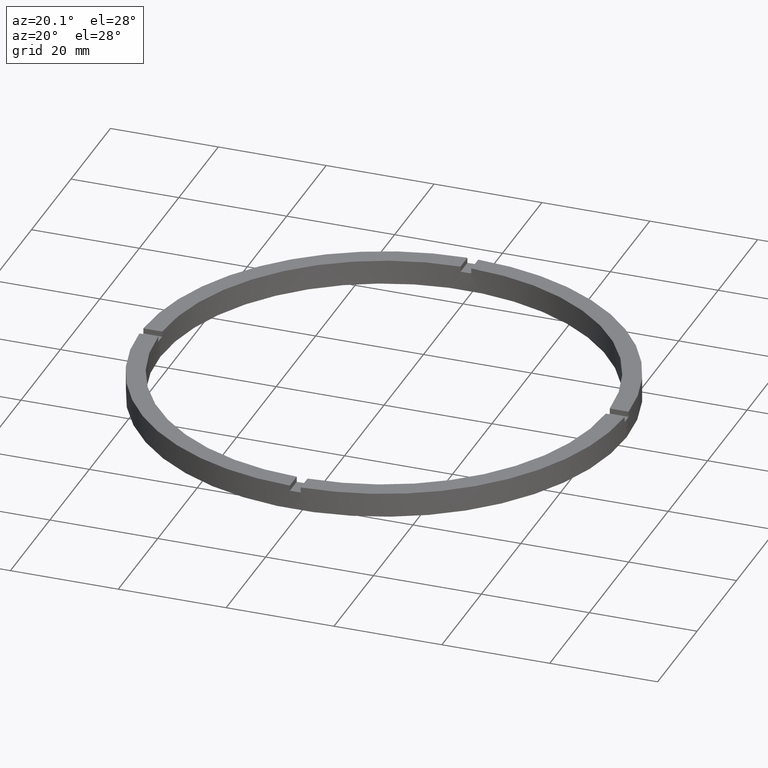
[diagram: clean part render]
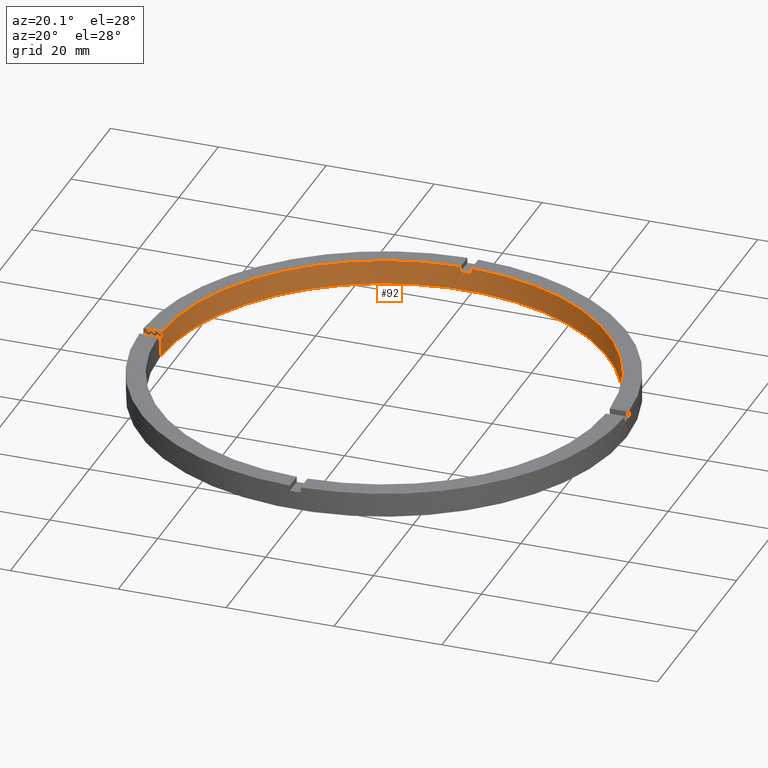
[diagram: same view with one face highlighted and labeled with its STEP entity id]
A machine part, auxiliary view. The second image highlights one B-rep face of the part: STEP entity #92.
In plain terms, the highlighted cylindrical surface (partial cylindrical patch) has radius 41.5 mm, axis along (-0, -0, -1).
Its self-contained STEP definition (entity closure, byte-faithful):
#7 = DIRECTION ( 'NONE',  ( 0.000000000000000000, 0.000000000000000000, 1.000000000000000000 ) ) ;
#8 = VECTOR ( 'NONE', #59, 1000.000000000000000 ) ;
#10 = VECTOR ( 'NONE', #347, 1000.000000000000000 ) ;
#31 = AXIS2_PLACEMENT_3D ( 'NONE', #399, #744, #630 ) ;
#44 = EDGE_CURVE ( 'NONE', #484, #700, #634, .T. ) ;
#49 = CARTESIAN_POINT ( 'NONE',  ( 41.50000000000000000, 5.082284216461515748E-15, 0.000000000000000000 ) ) ;
#54 = CARTESIAN_POINT ( 'NONE',  ( 0.000000000000000000, 0.000000000000000000, 3.499999999999999556 ) ) ;
#59 = DIRECTION ( 'NONE',  ( -0.000000000000000000, -0.000000000000000000, -1.000000000000000000 ) ) ;
#61 = DIRECTION ( 'NONE',  ( -0.000000000000000000, -0.000000000000000000, -1.000000000000000000 ) ) ;
#67 = EDGE_CURVE ( 'NONE', #481, #445, #633, .T. ) ;
#68 = CARTESIAN_POINT ( 'NONE',  ( 0.000000000000000000, 0.000000000000000000, 3.499999999999999556 ) ) ;
#92 = ADVANCED_FACE ( 'NONE', ( #151 ), #409, .F. ) ;
#93 = DIRECTION ( 'NONE',  ( 0.000000000000000000, 0.000000000000000000, 1.000000000000000000 ) ) ;
#94 = CARTESIAN_POINT ( 'NONE',  ( -1.000000000000026201, 41.48795005781799716, 3.499999999999999556 ) ) ;
#96 = DIRECTION ( 'NONE',  ( 1.000000000000000000, 0.000000000000000000, 0.000000000000000000 ) ) ;
#118 = VECTOR ( 'NONE', #61, 1000.000000000000000 ) ;
#143 = VECTOR ( 'NONE', #604, 1000.000000000000000 ) ;
#144 = CARTESIAN_POINT ( 'NONE',  ( -1.000000000000026201, 41.48795005781799716, 4.500000000000000000 ) ) ;
#146 = CARTESIAN_POINT ( 'NONE',  ( 0.000000000000000000, 0.000000000000000000, 4.500000000000000000 ) ) ;
#151 = FACE_OUTER_BOUND ( 'NONE', #193, .T. ) ;
#156 = DIRECTION ( 'NONE',  ( 1.000000000000000000, 0.000000000000000000, 0.000000000000000000 ) ) ;
#157 = ORIENTED_EDGE ( 'NONE', *, *, #513, .F. ) ;
#164 = CARTESIAN_POINT ( 'NONE',  ( -41.48795005781799716, 0.9999999999999709122, 4.500000000000000000 ) ) ;
#193 = EDGE_LOOP ( 'NONE', ( #446, #403, #660, #459, #491, #233, #157, #395, #476, #472, #719, #650 ) ) ;
#195 = CARTESIAN_POINT ( 'NONE',  ( 41.50000000000000000, 5.082284216461515748E-15, 4.500000000000000000 ) ) ;
#232 = DIRECTION ( 'NONE',  ( -1.000000000000000000, 0.000000000000000000, 0.000000000000000000 ) ) ;
#233 = ORIENTED_EDGE ( 'NONE', *, *, #370, .T. ) ;
#234 = CARTESIAN_POINT ( 'NONE',  ( 41.48795005781800427, 0.9999999999998436806, 4.500000000000000000 ) ) ;
#238 = VERTEX_POINT ( 'NONE', #144 ) ;
#249 = AXIS2_PLACEMENT_3D ( 'NONE', #54, #93, #156 ) ;
#256 = CARTESIAN_POINT ( 'NONE',  ( 0.000000000000000000, 0.000000000000000000, 0.000000000000000000 ) ) ;
#257 = CARTESIAN_POINT ( 'NONE',  ( 41.50000000000000000, 5.082284216461515748E-15, 3.499999999999999556 ) ) ;
#261 = CIRCLE ( 'NONE', #775, 41.50000000000000000 ) ;
#265 = DIRECTION ( 'NONE',  ( 0.000000000000000000, -0.000000000000000000, 1.000000000000000000 ) ) ;
#270 = CIRCLE ( 'NONE', #31, 41.50000000000000000 ) ;
#276 = CARTESIAN_POINT ( 'NONE',  ( -41.48795005781799716, 0.9999999999999709122, 4.500000000000000000 ) ) ;
#279 = LINE ( 'NONE', #610, #779 ) ;
#292 = EDGE_CURVE ( 'NONE', #484, #471, #689, .T. ) ;
#347 = DIRECTION ( 'NONE',  ( -0.000000000000000000, -0.000000000000000000, -1.000000000000000000 ) ) ;
#348 = AXIS2_PLACEMENT_3D ( 'NONE', #146, #358, #493 ) ;
#358 = DIRECTION ( 'NONE',  ( 0.000000000000000000, 0.000000000000000000, 1.000000000000000000 ) ) ;
#362 = DIRECTION ( 'NONE',  ( 0.000000000000000000, 0.000000000000000000, 1.000000000000000000 ) ) ;
#364 = DIRECTION ( 'NONE',  ( 1.000000000000000000, 0.000000000000000000, 0.000000000000000000 ) ) ;
#365 = EDGE_CURVE ( 'NONE', #375, #671, #474, .T. ) ;
#367 = CARTESIAN_POINT ( 'NONE',  ( -41.48795005781799716, 0.9999999999999709122, 3.499999999999999556 ) ) ;
#370 = EDGE_CURVE ( 'NONE', #481, #469, #261, .T. ) ;
#373 = CARTESIAN_POINT ( 'NONE',  ( 41.48795005781800427, 0.9999999999998436806, 4.500000000000000000 ) ) ;
#375 = VERTEX_POINT ( 'NONE', #367 ) ;
#378 = CARTESIAN_POINT ( 'NONE',  ( 0.9999999999999737987, 41.48795005781799716, 3.499999999999999556 ) ) ;
#394 = DIRECTION ( 'NONE',  ( 1.000000000000000000, 0.000000000000000000, 0.000000000000000000 ) ) ;
#395 = ORIENTED_EDGE ( 'NONE', *, *, #440, .T. ) ;
#399 = CARTESIAN_POINT ( 'NONE',  ( 0.000000000000000000, 0.000000000000000000, 4.500000000000000000 ) ) ;
#403 = ORIENTED_EDGE ( 'NONE', *, *, #292, .T. ) ;
#409 = CYLINDRICAL_SURFACE ( 'NONE', #737, 41.50000000000000000 ) ;
#429 = CARTESIAN_POINT ( 'NONE',  ( -41.50000000000000000, 0.000000000000000000, 0.000000000000000000 ) ) ;
#440 = EDGE_CURVE ( 'NONE', #238, #671, #270, .T. ) ;
#445 = VERTEX_POINT ( 'NONE', #523 ) ;
#446 = ORIENTED_EDGE ( 'NONE', *, *, #44, .F. ) ;
#448 = VECTOR ( 'NONE', #362, 1000.000000000000000 ) ;
#454 = VERTEX_POINT ( 'NONE', #373 ) ;
#459 = ORIENTED_EDGE ( 'NONE', *, *, #597, .T. ) ;
#465 = VERTEX_POINT ( 'NONE', #429 ) ;
#469 = VERTEX_POINT ( 'NONE', #94 ) ;
#471 = VERTEX_POINT ( 'NONE', #570 ) ;
#472 = ORIENTED_EDGE ( 'NONE', *, *, #778, .T. ) ;
#474 = LINE ( 'NONE', #276, #448 ) ;
#476 = ORIENTED_EDGE ( 'NONE', *, *, #365, .F. ) ;
#481 = VERTEX_POINT ( 'NONE', #378 ) ;
#482 = CARTESIAN_POINT ( 'NONE',  ( -41.50000000000000000, 0.000000000000000000, 4.500000000000000000 ) ) ;
#484 = VERTEX_POINT ( 'NONE', #257 ) ;
#491 = ORIENTED_EDGE ( 'NONE', *, *, #67, .F. ) ;
#493 = DIRECTION ( 'NONE',  ( 1.000000000000000000, 0.000000000000000000, 0.000000000000000000 ) ) ;
#513 = EDGE_CURVE ( 'NONE', #238, #469, #279, .T. ) ;
#523 = CARTESIAN_POINT ( 'NONE',  ( 0.9999999999999737987, 41.48795005781799716, 4.500000000000000000 ) ) ;
#539 = LINE ( 'NONE', #482, #8 ) ;
#542 = LINE ( 'NONE', #234, #10 ) ;
#544 = CIRCLE ( 'NONE', #558, 41.50000000000000000 ) ;
#557 = CARTESIAN_POINT ( 'NONE',  ( 0.000000000000000000, 0.000000000000000000, 3.499999999999999556 ) ) ;
#558 = AXIS2_PLACEMENT_3D ( 'NONE', #256, #632, #394 ) ;
#560 = CARTESIAN_POINT ( 'NONE',  ( 0.9999999999999737987, 41.48795005781799716, 4.500000000000000000 ) ) ;
#566 = CIRCLE ( 'NONE', #249, 41.50000000000000000 ) ;
#570 = CARTESIAN_POINT ( 'NONE',  ( 41.48795005781800427, 0.9999999999998436806, 3.499999999999999556 ) ) ;
#577 = DIRECTION ( 'NONE',  ( -0.000000000000000000, -0.000000000000000000, -1.000000000000000000 ) ) ;
#597 = EDGE_CURVE ( 'NONE', #454, #445, #774, .T. ) ;
#604 = DIRECTION ( 'NONE',  ( 0.000000000000000000, 0.000000000000000000, 1.000000000000000000 ) ) ;
#610 = CARTESIAN_POINT ( 'NONE',  ( -1.000000000000026201, 41.48795005781799716, 4.500000000000000000 ) ) ;
#622 = AXIS2_PLACEMENT_3D ( 'NONE', #557, #7, #364 ) ;
#630 = DIRECTION ( 'NONE',  ( 1.000000000000000000, 0.000000000000000000, 0.000000000000000000 ) ) ;
#632 = DIRECTION ( 'NONE',  ( 0.000000000000000000, 0.000000000000000000, 1.000000000000000000 ) ) ;
#633 = LINE ( 'NONE', #560, #143 ) ;
#634 = LINE ( 'NONE', #195, #118 ) ;
#650 = ORIENTED_EDGE ( 'NONE', *, *, #753, .F. ) ;
#660 = ORIENTED_EDGE ( 'NONE', *, *, #678, .F. ) ;
#662 = CARTESIAN_POINT ( 'NONE',  ( 0.000000000000000000, 0.000000000000000000, 4.500000000000000000 ) ) ;
#665 = EDGE_CURVE ( 'NONE', #698, #465, #539, .T. ) ;
#671 = VERTEX_POINT ( 'NONE', #164 ) ;
#678 = EDGE_CURVE ( 'NONE', #454, #471, #542, .T. ) ;
#689 = CIRCLE ( 'NONE', #622, 41.50000000000000000 ) ;
#698 = VERTEX_POINT ( 'NONE', #768 ) ;
#700 = VERTEX_POINT ( 'NONE', #49 ) ;
#719 = ORIENTED_EDGE ( 'NONE', *, *, #665, .T. ) ;
#737 = AXIS2_PLACEMENT_3D ( 'NONE', #662, #752, #232 ) ;
#744 = DIRECTION ( 'NONE',  ( 0.000000000000000000, 0.000000000000000000, 1.000000000000000000 ) ) ;
#752 = DIRECTION ( 'NONE',  ( -0.000000000000000000, -0.000000000000000000, -1.000000000000000000 ) ) ;
#753 = EDGE_CURVE ( 'NONE', #700, #465, #544, .T. ) ;
#768 = CARTESIAN_POINT ( 'NONE',  ( -41.50000000000000000, 0.000000000000000000, 3.499999999999999556 ) ) ;
#774 = CIRCLE ( 'NONE', #348, 41.50000000000000000 ) ;
#775 = AXIS2_PLACEMENT_3D ( 'NONE', #68, #265, #96 ) ;
#778 = EDGE_CURVE ( 'NONE', #375, #698, #566, .T. ) ;
#779 = VECTOR ( 'NONE', #577, 1000.000000000000000 ) ;